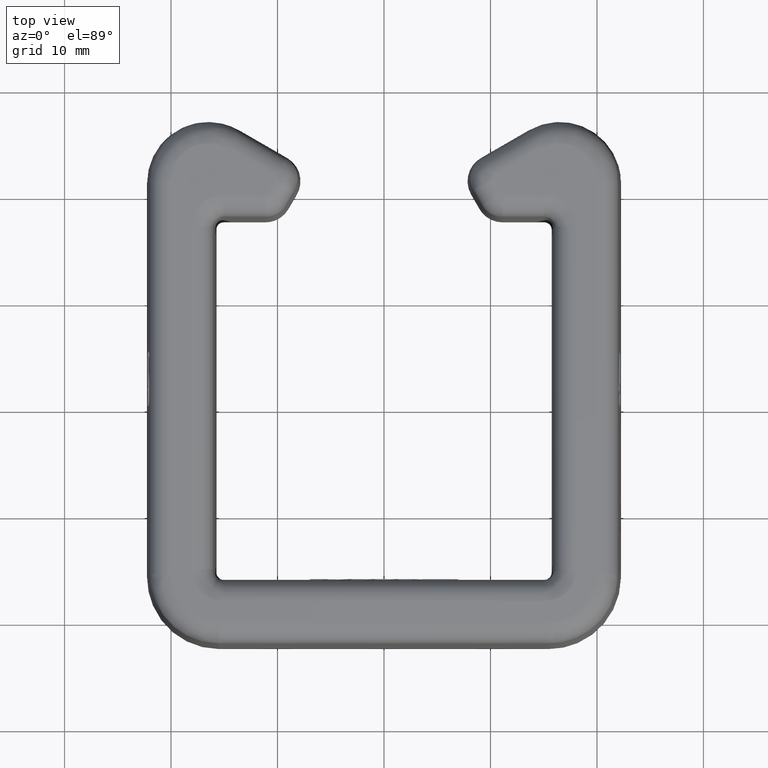
[diagram: clean part render]
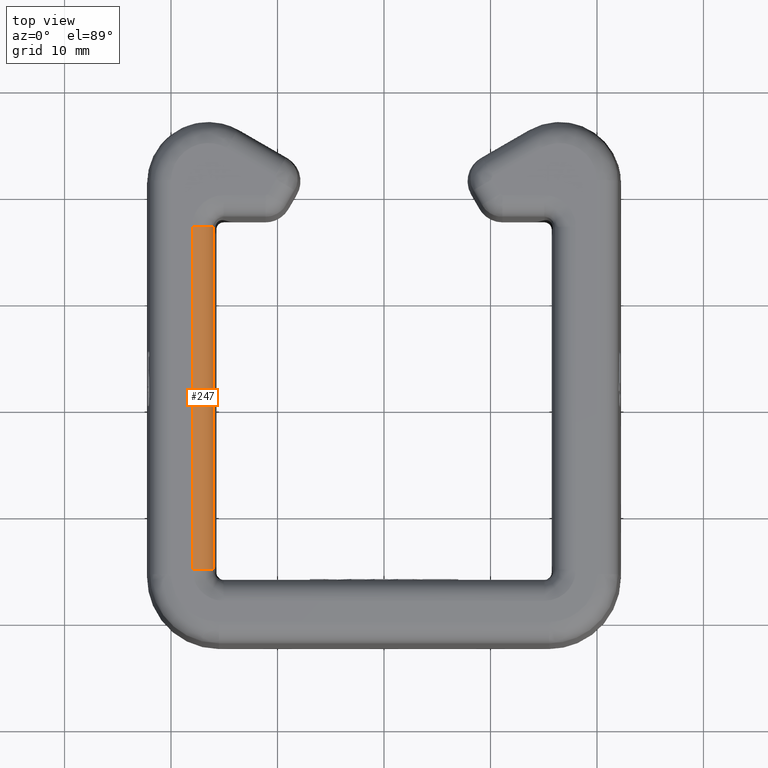
[diagram: same view with one face highlighted and labeled with its STEP entity id]
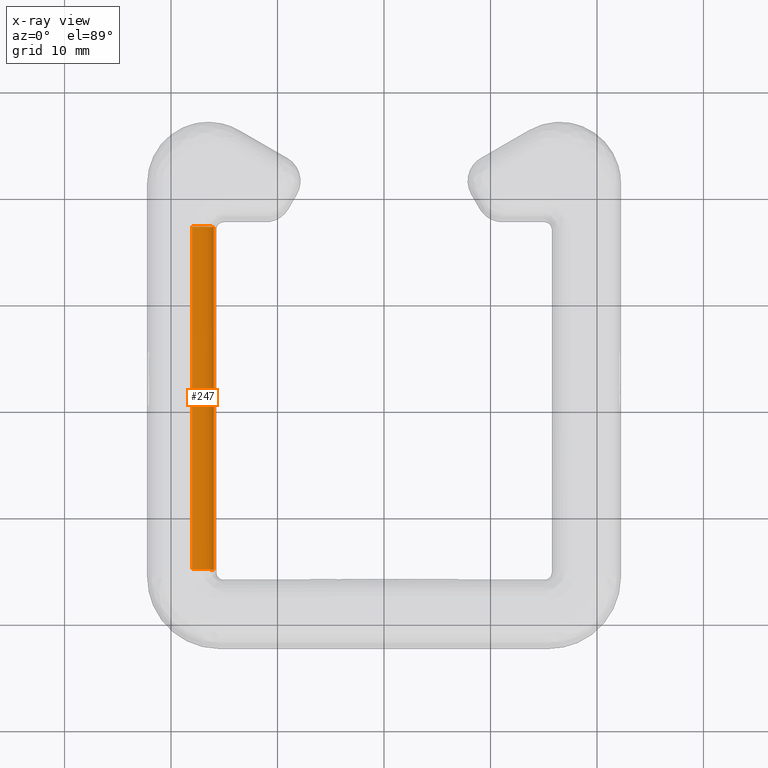
[diagram: x-ray of the same camera — body ghosted, the highlighted face saturated]
A machine part, top view. The second image highlights one B-rep face of the part: STEP entity #247.
The next image is the same camera in x-ray: the body ghosted, the highlighted face saturated — about 0% of this face is hidden behind the body in this view.
In plain terms, the highlighted face is a freeform B-spline surface patch.
Its self-contained STEP definition (entity closure, byte-faithful):
#247=ADVANCED_FACE('',(#544),#545,.T.);
#544=FACE_OUTER_BOUND('',#1561,.T.);
#545=(B_SPLINE_SURFACE(3,1,((#1563,#1564),(#1565,#1566),(#1567,#1568),(#1569,#1570)),.UNSPECIFIED.,.F.,.F.,.F.)B_SPLINE_SURFACE_WITH_KNOTS((4,4),(2,2),(0.0,1.0),(0.0,1.0),.UNSPECIFIED.)RATIONAL_B_SPLINE_SURFACE(((1.0,1.0),(0.808833632769452,0.808833632769452),(0.808833632769452,0.808833632769452),(1.0,1.0)))BOUNDED_SURFACE()REPRESENTATION_ITEM('')GEOMETRIC_REPRESENTATION_ITEM()SURFACE());
#1561=EDGE_LOOP('',(#3436,#3437,#3438,#3439));
#1563=CARTESIAN_POINT('',(-18.0153945262355,4.94999999998669,17.0));
#1564=CARTESIAN_POINT('',(-18.015394526244,37.1249255972017,17.0));
#1565=CARTESIAN_POINT('',(-16.859970656764,4.949999999987,17.0));
#1566=CARTESIAN_POINT('',(-16.8599706567725,37.124925597202,17.0));
#1567=CARTESIAN_POINT('',(-16.0358640629001,4.94999999998721,16.1901527056943));
#1568=CARTESIAN_POINT('',(-16.0358640629086,37.1249255972022,16.1901527056943));
#1569=CARTESIAN_POINT('',(-16.0156991359227,4.94999999998722,15.0349048128745));
#1570=CARTESIAN_POINT('',(-16.0156991359312,37.1249255972022,15.0349048128745));
#3436=ORIENTED_EDGE('',*,*,#4149,.T.);
#3437=ORIENTED_EDGE('',*,*,#4150,.T.);
#3438=ORIENTED_EDGE('',*,*,#4151,.T.);
#3439=ORIENTED_EDGE('',*,*,#4152,.T.);
#4149=EDGE_CURVE('',#4807,#4808,#4809,.T.);
#4150=EDGE_CURVE('',#4808,#4810,#4811,.T.);
#4151=EDGE_CURVE('',#4810,#4804,#4812,.T.);
#4152=EDGE_CURVE('',#4804,#4807,#4813,.T.);
#4804=VERTEX_POINT('',#6703);
#4807=VERTEX_POINT('',#6717);
#4808=VERTEX_POINT('',#6718);
#4809=(B_SPLINE_CURVE(3,(#6720,#6721,#6722,#6723),.UNSPECIFIED.,.F.,.F.)B_SPLINE_CURVE_WITH_KNOTS((4,4),(-1.0,0.0),.UNSPECIFIED.)RATIONAL_B_SPLINE_CURVE((1.0,0.808833632769452,0.808833632769452,1.0))BOUNDED_CURVE()REPRESENTATION_ITEM('')GEOMETRIC_REPRESENTATION_ITEM()CURVE());
#4810=VERTEX_POINT('',#6730);
#4811=B_SPLINE_CURVE_WITH_KNOTS('',1,(#6731,#6732),.UNSPECIFIED.,.F.,.F.,(2,2),(-1.0,0.0),.UNSPECIFIED.);
#4812=(B_SPLINE_CURVE(3,(#6734,#6735,#6736,#6737),.UNSPECIFIED.,.F.,.F.)B_SPLINE_CURVE_WITH_KNOTS((4,4),(0.0,1.0),.UNSPECIFIED.)RATIONAL_B_SPLINE_CURVE((1.0,0.808833632769452,0.808833632769452,1.0))BOUNDED_CURVE()REPRESENTATION_ITEM('')GEOMETRIC_REPRESENTATION_ITEM()CURVE());
#4813=B_SPLINE_CURVE_WITH_KNOTS('',1,(#6744,#6745),.UNSPECIFIED.,.F.,.F.,(2,2),(0.0,1.0),.UNSPECIFIED.);
#6703=CARTESIAN_POINT('',(-16.0156991359227,4.94999999998724,15.0349048128747));
#6717=CARTESIAN_POINT('',(-16.0156991359312,37.1249255972023,15.0349048128747));
#6718=CARTESIAN_POINT('',(-18.0153945262439,37.1249255972017,17.0));
#6720=CARTESIAN_POINT('',(-16.0156991359312,37.1249255972022,15.0349048128745));
#6721=CARTESIAN_POINT('',(-16.0358640629086,37.1249255972022,16.1901527056943));
#6722=CARTESIAN_POINT('',(-16.8599706567725,37.124925597202,17.0));
#6723=CARTESIAN_POINT('',(-18.015394526244,37.1249255972017,17.0));
#6730=CARTESIAN_POINT('',(-18.0153945262353,4.9499999999867,17.0));
#6731=CARTESIAN_POINT('',(-18.015394526244,37.1249255972017,17.0));
#6732=CARTESIAN_POINT('',(-18.0153945262355,4.94999999998669,17.0));
#6734=CARTESIAN_POINT('',(-18.0153945262355,4.94999999998669,17.0));
#6735=CARTESIAN_POINT('',(-16.859970656764,4.949999999987,17.0));
#6736=CARTESIAN_POINT('',(-16.0358640629001,4.94999999998721,16.1901527056943));
#6737=CARTESIAN_POINT('',(-16.0156991359227,4.94999999998722,15.0349048128745));
#6744=CARTESIAN_POINT('',(-16.0156991359227,4.94999999998722,15.0349048128745));
#6745=CARTESIAN_POINT('',(-16.0156991359312,37.1249255972022,15.0349048128745));